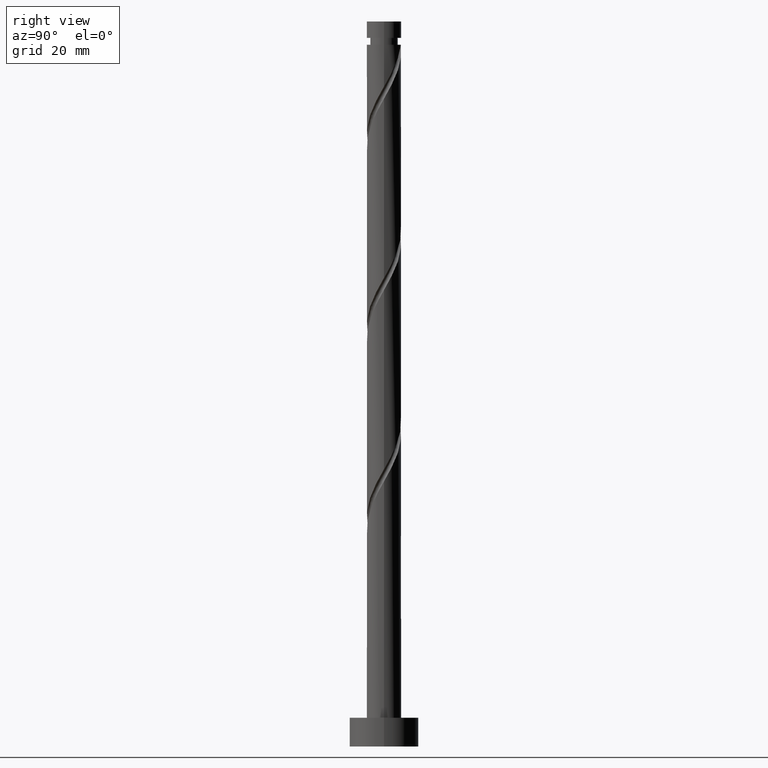
[diagram: clean part render]
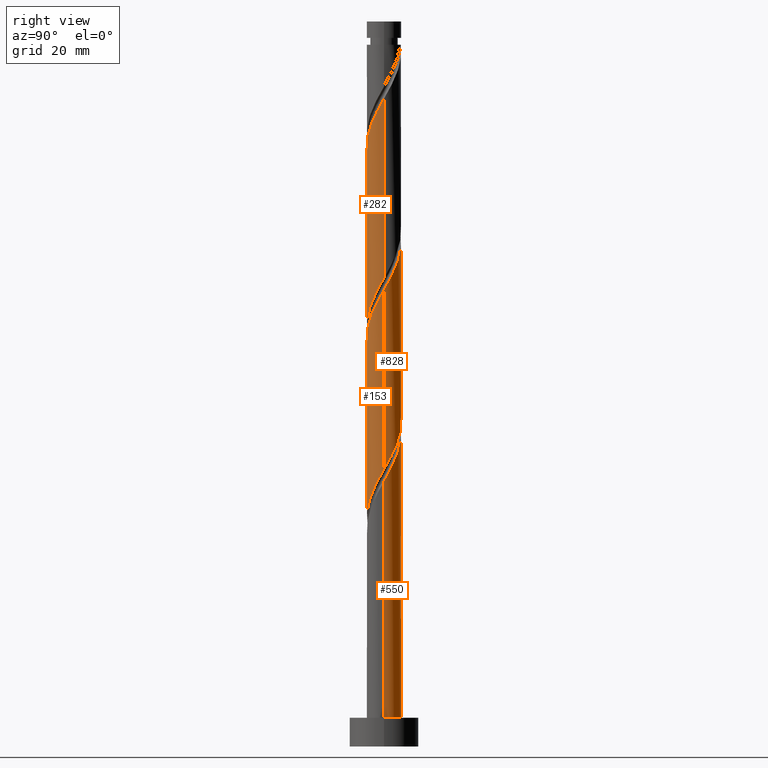
[diagram: same view with one multi-face feature highlighted, each face labeled with its STEP entity id]
A machine part, right view. The highlighted faces form ONE feature: a constant-radius fillet chain: 4 tangent blend faces with common blend radius 3 mm. The faces share edges in the B-rep.
Their STEP definitions:
[1] entity #282 (Cylinder):
#67 = CARTESIAN_POINT ( 'NONE',  ( -2.247618455994268682, -1.987010638188424938, 100.0223005663138309 ) ) ;
#70 = CARTESIAN_POINT ( 'NONE',  ( 3.000000000000000444, 3.673940397442060361E-16, 126.2999999999999972 ) ) ;
#81 = CARTESIAN_POINT ( 'NONE',  ( -0.9529893618115808929, -2.844610918258241306, 102.8000783440916166 ) ) ;
#91 = CARTESIAN_POINT ( 'NONE',  ( 0.5969924622639720679, -2.940000000000006164, 105.5778561218694023 ) ) ;
#119 = CARTESIAN_POINT ( 'NONE',  ( 1.337578430002084540, -2.685308910273302985, 106.9667450107582738 ) ) ;
#125 = CARTESIAN_POINT ( 'NONE',  ( 1.327489493864649539, -2.719147488601523222, 75.71674501075827379 ) ) ;
#134 = CARTESIAN_POINT ( 'NONE',  ( 2.940000000000000391, -0.5969924622639725120, 80.57785612186937385 ) ) ;
#140 = CARTESIAN_POINT ( 'NONE',  ( -2.282915221543595052, -1.986023542744032921, 68.77230056631381672 ) ) ;
#152 = VERTEX_POINT ( 'NONE', #730 ) ;
#207 = EDGE_CURVE ( 'NONE', #1441, #697, #371, .T. ) ;
#208 = CARTESIAN_POINT ( 'NONE',  ( -1.327489493864653314, -2.719147488601527662, 102.1056338996471453 ) ) ;
#215 = CARTESIAN_POINT ( 'NONE',  ( 0.2099341193570265496, -3.018595548697906139, 104.8834116774249310 ) ) ;
#218 = CYLINDRICAL_SURFACE ( 'NONE', #1223, 3.000000000000000444 ) ;
#245 = CARTESIAN_POINT ( 'NONE',  ( 2.509213369244494451, -1.691106054833253047, 78.49452278853604525 ) ) ;
#253 = CARTESIAN_POINT ( 'NONE',  ( 3.000000000000005329, 2.138391175437683903E-15, 112.8476227999926635 ) ) ;
#260 = CARTESIAN_POINT ( 'NONE',  ( 2.994334948306430100, -0.1842775552007419881, 112.5223005663138593 ) ) ;
#270 = CARTESIAN_POINT ( 'NONE',  ( 3.000000000000001332, -3.050572026498535773E-15, 81.64142277707944118 ) ) ;
#282 = ADVANCED_FACE ( 'NONE', ( #1026 ), #218, .T. ) ;
#336 = CARTESIAN_POINT ( 'NONE',  ( -2.509213369244499781, -1.691106054833252825, 99.32785612186935964 ) ) ;
#343 = CARTESIAN_POINT ( 'NONE',  ( -0.1842775552007404338, -2.994334948306430100, 104.1889672329805023 ) ) ;
#347 = DIRECTION ( 'NONE',  ( -1.000000000000000000, 0.000000000000000000, 0.000000000000000000 ) ) ;
#371 = LINE ( 'NONE', #1319, #430 ) ;
#377 = CARTESIAN_POINT ( 'NONE',  ( 2.501031355072561357, -1.656756518304346226, 109.7445227885360737 ) ) ;
#394 = CARTESIAN_POINT ( 'NONE',  ( 2.282915221543595941, -1.986023542744037584, 109.0500783440916166 ) ) ;
#430 = VECTOR ( 'NONE', #1084, 1000.000000000000000 ) ;
#461 = EDGE_LOOP ( 'NONE', ( #1214, #1558, #678, #1717 ) ) ;
#467 = DIRECTION ( 'NONE',  ( -0.000000000000000000, -0.000000000000000000, -1.000000000000000000 ) ) ;
#468 = EDGE_CURVE ( 'NONE', #1441, #1573, #890, .T. ) ;
#474 = LINE ( 'NONE', #70, #1139 ) ;
#581 = EDGE_CURVE ( 'NONE', #152, #697, #1711, .T. ) ;
#619 = CARTESIAN_POINT ( 'NONE',  ( -3.000000000000005773, -0.3015113445777629630, 96.71438250251522106 ) ) ;
#625 = CARTESIAN_POINT ( 'NONE',  ( 0.9840508051709158099, -2.861404451302103968, 106.2723005663138025 ) ) ;
#643 = CARTESIAN_POINT ( 'NONE',  ( 2.970074347914952728, -0.5784892297585085830, 111.8278561218693596 ) ) ;
#652 = CARTESIAN_POINT ( 'NONE',  ( 3.000000000000005773, -0.09222585497302364377, 112.6844591119645287 ) ) ;
#659 = CARTESIAN_POINT ( 'NONE',  ( 0.5784892297585039200, -2.970074347914949620, 74.32785612186938806 ) ) ;
#666 = CARTESIAN_POINT ( 'NONE',  ( -0.2099341193570287145, -3.018595548697903475, 72.93896723298048812 ) ) ;
#675 = CARTESIAN_POINT ( 'NONE',  ( -2.501031355072559137, -1.656756518304341563, 68.07785612186937385 ) ) ;
#678 = ORIENTED_EDGE ( 'NONE', *, *, #207, .T. ) ;
#697 = VERTEX_POINT ( 'NONE', #1126 ) ;
#730 = CARTESIAN_POINT ( 'NONE',  ( 3.000000000000001332, -3.050572026498535773E-15, 81.64142277707944118 ) ) ;
#776 = CARTESIAN_POINT ( 'NONE',  ( -3.000000000000005773, 1.644916288798218178E-16, 96.18095613332596372 ) ) ;
#782 = CARTESIAN_POINT ( 'NONE',  ( 1.691106054833251937, -2.509213369244499781, 107.6611894552027167 ) ) ;
#807 = CARTESIAN_POINT ( 'NONE',  ( -1.691106054833251493, -2.509213369244495784, 70.16118945520267403 ) ) ;
#823 = CARTESIAN_POINT ( 'NONE',  ( -3.000000000000000444, -0.09222585497302744628, 65.13791979844094726 ) ) ;
#890 =( BOUNDED_CURVE ( )  B_SPLINE_CURVE ( 2, ( #1713, #619, #1407, #1565, #1271, #336, #67, #1420, #1291, #208, #81, #1154, #343, #215, #91, #625, #119, #782, #1062, #394, #377, #940, #1478, #643, #260, #652, #253 ),
 .UNSPECIFIED., .F., .T. ) 
 B_SPLINE_CURVE_WITH_KNOTS ( ( 3, 2, 2, 2, 2, 2, 2, 2, 2, 2, 2, 2, 2, 3 ),
 ( 0.5545317669814462391, 0.5625000000000000000, 0.5729166666666667407, 0.5833333333333332593, 0.5937500000000000000, 0.6041666666666667407, 0.6145833333333332593, 0.6250000000000000000, 0.6354166666666667407, 0.6458333333333332593, 0.6562500000000000000, 0.6666666666666667407, 0.6770833333333332593, 0.6795317669814462391 ),
 .UNSPECIFIED. ) 
 CURVE ( )  GEOMETRIC_REPRESENTATION_ITEM ( )  RATIONAL_B_SPLINE_CURVE ( ( 0.9062941362546396151, 0.9031415850403439194, 0.9090909090909191637, 0.9013135103398377534, 0.9090909090909191637, 0.9013135103398377534, 0.9090909090909191637, 0.9013135103398377534, 0.9090909090909191637, 0.9013135103398377534, 0.9090909090909191637, 0.9013135103398377534, 0.9090909090909191637, 0.9013135103398377534, 0.9090909090909191637, 0.9013135103398377534, 0.9090909090909191637, 0.9013135103398377534, 0.9090909090909191637, 0.9013135103398377534, 0.9090909090909191637, 0.9013135103398377534, 0.9090909090909191637, 0.9013135103398377534, 0.9090909090909191637, 0.9072628343904129977, 0.9062941362546396151 ) ) 
 REPRESENTATION_ITEM ( '' )  );
#906 = CARTESIAN_POINT ( 'NONE',  ( -2.994334948306426103, -0.1842775552007384354, 65.30007834409160239 ) ) ;
#925 = CARTESIAN_POINT ( 'NONE',  ( 3.000000000000001776, -0.3015113445777652945, 81.10799640789015541 ) ) ;
#940 = CARTESIAN_POINT ( 'NONE',  ( 2.719147488601527218, -1.327489493864653314, 110.4389672329804881 ) ) ;
#1026 = FACE_OUTER_BOUND ( 'NONE', #461, .T. ) ;
#1052 = CARTESIAN_POINT ( 'NONE',  ( 2.685308910273296767, -1.337578430002085206, 79.18896723298050233 ) ) ;
#1062 = CARTESIAN_POINT ( 'NONE',  ( 1.987010638188424938, -2.247618455994268682, 108.3556338996471737 ) ) ;
#1067 = CARTESIAN_POINT ( 'NONE',  ( 0.9529893618115771181, -2.844610918258236421, 75.02230056631381672 ) ) ;
#1074 = CARTESIAN_POINT ( 'NONE',  ( 2.861404451302097751, -0.9840508051709180304, 79.88341167742493099 ) ) ;
#1083 = CARTESIAN_POINT ( 'NONE',  ( -2.719147488601523222, -1.327489493864649539, 67.38341167742491677 ) ) ;
#1084 = DIRECTION ( 'NONE',  ( -0.000000000000000000, -0.000000000000000000, -1.000000000000000000 ) ) ;
#1126 = CARTESIAN_POINT ( 'NONE',  ( -3.000000000000001332, -6.041328915222589030E-15, 64.97475611041279819 ) ) ;
#1139 = VECTOR ( 'NONE', #467, 1000.000000000000000 ) ;
#1154 = CARTESIAN_POINT ( 'NONE',  ( -0.5784892297585074727, -2.970074347914952728, 103.4945227885360310 ) ) ;
#1211 = CARTESIAN_POINT ( 'NONE',  ( -0.5969924622639721790, -2.940000000000000391, 72.24452278853607368 ) ) ;
#1214 = ORIENTED_EDGE ( 'NONE', *, *, #1230, .F. ) ;
#1219 = CARTESIAN_POINT ( 'NONE',  ( -2.844610918258236421, -0.9529893618115774512, 66.68896723298050233 ) ) ;
#1223 = AXIS2_PLACEMENT_3D ( 'NONE', #1426, #1698, #347 ) ;
#1230 = EDGE_CURVE ( 'NONE', #1573, #152, #474, .T. ) ;
#1271 = CARTESIAN_POINT ( 'NONE',  ( -2.685308910273302985, -1.337578430002084984, 98.63341167742494520 ) ) ;
#1291 = CARTESIAN_POINT ( 'NONE',  ( -1.656756518304345116, -2.501031355072562690, 101.4111894552027024 ) ) ;
#1314 = CARTESIAN_POINT ( 'NONE',  ( 1.986023542744032477, -2.282915221543594608, 77.10563389964714531 ) ) ;
#1319 = CARTESIAN_POINT ( 'NONE',  ( -3.000000000000000444, 0.000000000000000000, 126.2999999999999972 ) ) ;
#1331 = CARTESIAN_POINT ( 'NONE',  ( 1.656756518304340453, -2.501031355072559581, 76.41118945520270245 ) ) ;
#1350 = CARTESIAN_POINT ( 'NONE',  ( -1.987010638188424050, -2.247618455994263797, 69.46674501075823116 ) ) ;
#1374 = CARTESIAN_POINT ( 'NONE',  ( 3.000000000000005329, 2.138391175437683903E-15, 112.8476227999926635 ) ) ;
#1407 = CARTESIAN_POINT ( 'NONE',  ( -2.940000000000006164, -0.5969924622639720679, 97.24452278853605947 ) ) ;
#1420 = CARTESIAN_POINT ( 'NONE',  ( -1.986023542744037584, -2.282915221543595941, 100.7167450107582312 ) ) ;
#1426 = CARTESIAN_POINT ( 'NONE',  ( 0.000000000000000000, 0.000000000000000000, 126.2999999999999972 ) ) ;
#1441 = VERTEX_POINT ( 'NONE', #776 ) ;
#1469 = CARTESIAN_POINT ( 'NONE',  ( 2.247618455994263797, -1.987010638188424050, 77.80007834409160239 ) ) ;
#1478 = CARTESIAN_POINT ( 'NONE',  ( 2.844610918258241306, -0.9529893618115813370, 111.1334116774249452 ) ) ;
#1488 = CARTESIAN_POINT ( 'NONE',  ( -1.337578430002084540, -2.685308910273296767, 70.85563389964715952 ) ) ;
#1523 = CARTESIAN_POINT ( 'NONE',  ( -3.000000000000001332, -6.041328915222588241E-15, 64.97475611041279819 ) ) ;
#1558 = ORIENTED_EDGE ( 'NONE', *, *, #468, .F. ) ;
#1565 = CARTESIAN_POINT ( 'NONE',  ( -2.861404451302103968, -0.9840508051709158099, 97.93896723298050233 ) ) ;
#1573 = VERTEX_POINT ( 'NONE', #1374 ) ;
#1615 = CARTESIAN_POINT ( 'NONE',  ( -0.9840508051709164761, -2.861404451302098639, 71.55007834409158818 ) ) ;
#1623 = CARTESIAN_POINT ( 'NONE',  ( -2.970074347914949175, -0.5784892297585045862, 65.99452278853605947 ) ) ;
#1698 = DIRECTION ( 'NONE',  ( -0.000000000000000000, -0.000000000000000000, -1.000000000000000000 ) ) ;
#1711 =( BOUNDED_CURVE ( )  B_SPLINE_CURVE ( 2, ( #270, #925, #134, #1074, #1052, #245, #1469, #1314, #1331, #125, #1067, #659, #1741, #666, #1211, #1615, #1488, #807, #1350, #140, #675, #1083, #1219, #1623, #906, #823, #1523 ),
 .UNSPECIFIED., .F., .T. ) 
 B_SPLINE_CURVE_WITH_KNOTS ( ( 3, 2, 2, 2, 2, 2, 2, 2, 2, 2, 2, 2, 2, 3 ),
 ( 0.5545317669814463502, 0.5625000000000000000, 0.5729166666666666297, 0.5833333333333333703, 0.5937500000000000000, 0.6041666666666666297, 0.6145833333333333703, 0.6250000000000000000, 0.6354166666666666297, 0.6458333333333333703, 0.6562500000000000000, 0.6666666666666666297, 0.6770833333333333703, 0.6795317669814461281 ),
 .UNSPECIFIED. ) 
 CURVE ( )  GEOMETRIC_REPRESENTATION_ITEM ( )  RATIONAL_B_SPLINE_CURVE ( ( 0.9062941362546331758, 0.9031415850403377021, 0.9090909090909129464, 0.9013135103398315362, 0.9090909090909129464, 0.9013135103398315362, 0.9090909090909129464, 0.9013135103398315362, 0.9090909090909129464, 0.9013135103398315362, 0.9090909090909129464, 0.9013135103398315362, 0.9090909090909129464, 0.9013135103398315362, 0.9090909090909129464, 0.9013135103398315362, 0.9090909090909129464, 0.9013135103398315362, 0.9090909090909129464, 0.9013135103398315362, 0.9090909090909129464, 0.9013135103398315362, 0.9090909090909129464, 0.9013135103398315362, 0.9090909090909129464, 0.9072628343904068915, 0.9062941362546335089 ) ) 
 REPRESENTATION_ITEM ( '' )  );
#1713 = CARTESIAN_POINT ( 'NONE',  ( -3.000000000000006217, 1.644916288798217932E-16, 96.18095613332596372 ) ) ;
#1717 = ORIENTED_EDGE ( 'NONE', *, *, #581, .F. ) ;
#1741 = CARTESIAN_POINT ( 'NONE',  ( 0.1842775552007376860, -2.994334948306426103, 73.63341167742493099 ) ) ;
[2] entity #828 (Cylinder):
#1 = CARTESIAN_POINT ( 'NONE',  ( -3.000000000000005773, 0.09222585497302175639, 96.01779244529784307 ) ) ;
#11 = CARTESIAN_POINT ( 'NONE',  ( -2.970074347914952728, 0.5784892297585071397, 95.16118945520268824 ) ) ;
#45 = AXIS2_PLACEMENT_3D ( 'NONE', #602, #471, #1428 ) ;
#50 = CARTESIAN_POINT ( 'NONE',  ( -1.986023542744033366, 2.282915221543594164, 60.43896723298048812 ) ) ;
#80 = CYLINDRICAL_SURFACE ( 'NONE', #45, 3.000000000000000444 ) ;
#114 = CARTESIAN_POINT ( 'NONE',  ( 3.000000000000005329, -1.046764911053411698E-15, 79.51428946665932074 ) ) ;
#141 = CARTESIAN_POINT ( 'NONE',  ( 3.000000000000000888, 0.09222585497301824531, 48.47125313177425454 ) ) ;
#151 = CARTESIAN_POINT ( 'NONE',  ( -2.844610918258241306, 0.9529893618115803378, 94.46674501075827379 ) ) ;
#159 = EDGE_CURVE ( 'NONE', #697, #1056, #1320, .T. ) ;
#169 = CARTESIAN_POINT ( 'NONE',  ( -0.9529893618115777842, 2.844610918258236421, 58.35563389964715242 ) ) ;
#207 = EDGE_CURVE ( 'NONE', #1441, #697, #371, .T. ) ;
#248 = CARTESIAN_POINT ( 'NONE',  ( 1.327489493864653758, 2.719147488601527218, 85.43896723298044549 ) ) ;
#264 = CARTESIAN_POINT ( 'NONE',  ( 2.685308910273302985, 1.337578430002083874, 81.96674501075824537 ) ) ;
#287 = CARTESIAN_POINT ( 'NONE',  ( -2.282915221543596385, 1.986023542744037140, 92.38341167742488835 ) ) ;
#293 = CARTESIAN_POINT ( 'NONE',  ( 0.9840508051709182524, 2.861404451302097751, 54.88341167742493099 ) ) ;
#310 = CARTESIAN_POINT ( 'NONE',  ( -1.327489493864650649, 2.719147488601523222, 59.05007834409159528 ) ) ;
#369 = CARTESIAN_POINT ( 'NONE',  ( 3.000000000000003997, 0.3015113445777683476, 80.04771583584856387 ) ) ;
#371 = LINE ( 'NONE', #1319, #430 ) ;
#379 = CARTESIAN_POINT ( 'NONE',  ( 1.656756518304345116, 2.501031355072562246, 84.74452278853604525 ) ) ;
#380 = VERTEX_POINT ( 'NONE', #760 ) ;
#388 = CARTESIAN_POINT ( 'NONE',  ( 2.861404451302103968, 0.9840508051709155879, 81.27230056631380251 ) ) ;
#397 = CARTESIAN_POINT ( 'NONE',  ( -0.5969924622639714018, 2.940000000000006164, 88.91118945520275929 ) ) ;
#404 = CARTESIAN_POINT ( 'NONE',  ( -1.987010638188425382, 2.247618455994268682, 91.68896723298050233 ) ) ;
#426 = CARTESIAN_POINT ( 'NONE',  ( -0.5784892297585059184, 2.970074347914948731, 57.66118945520269534 ) ) ;
#430 = VECTOR ( 'NONE', #1084, 1000.000000000000000 ) ;
#471 = DIRECTION ( 'NONE',  ( -0.000000000000000000, -0.000000000000000000, -1.000000000000000000 ) ) ;
#480 = ORIENTED_EDGE ( 'NONE', *, *, #1524, .F. ) ;
#494 = CARTESIAN_POINT ( 'NONE',  ( 2.994334948306426103, 0.1842775552007375195, 48.63341167742493809 ) ) ;
#507 = CARTESIAN_POINT ( 'NONE',  ( 2.282915221543595052, 1.986023542744032477, 52.10563389964714531 ) ) ;
#573 = CARTESIAN_POINT ( 'NONE',  ( -2.509213369244495784, 1.691106054833251493, 61.82785612186936675 ) ) ;
#586 = CARTESIAN_POINT ( 'NONE',  ( 3.000000000000000444, 3.673940397442060361E-16, 126.2999999999999972 ) ) ;
#602 = CARTESIAN_POINT ( 'NONE',  ( 0.000000000000000000, 0.000000000000000000, 126.2999999999999972 ) ) ;
#627 = CARTESIAN_POINT ( 'NONE',  ( 0.9529893618115813370, 2.844610918258240417, 86.13341167742493099 ) ) ;
#646 = CARTESIAN_POINT ( 'NONE',  ( 2.247618455994269127, 1.987010638188424494, 83.35563389964717373 ) ) ;
#686 = CARTESIAN_POINT ( 'NONE',  ( 2.844610918258237309, 0.9529893618115758969, 50.02230056631381672 ) ) ;
#697 = VERTEX_POINT ( 'NONE', #1126 ) ;
#702 = CARTESIAN_POINT ( 'NONE',  ( -1.656756518304342007, 2.501031355072559137, 59.74452278853604525 ) ) ;
#742 = EDGE_CURVE ( 'NONE', #380, #1056, #1100, .T. ) ;
#760 = CARTESIAN_POINT ( 'NONE',  ( 3.000000000000005329, -1.046764911053411698E-15, 79.51428946665932074 ) ) ;
#765 = CARTESIAN_POINT ( 'NONE',  ( 2.501031355072559137, 1.656756518304341119, 51.41118945520270955 ) ) ;
#776 = CARTESIAN_POINT ( 'NONE',  ( -3.000000000000005773, 1.644916288798218178E-16, 96.18095613332596372 ) ) ;
#777 = CARTESIAN_POINT ( 'NONE',  ( 1.691106054833253269, 2.509213369244494451, 53.49452278853603815 ) ) ;
#795 = VECTOR ( 'NONE', #1092, 1000.000000000000000 ) ;
#819 = ORIENTED_EDGE ( 'NONE', *, *, #207, .F. ) ;
#826 = CARTESIAN_POINT ( 'NONE',  ( -2.719147488601528106, 1.327489493864652426, 93.77230056631381672 ) ) ;
#828 = ADVANCED_FACE ( 'NONE', ( #1284 ), #80, .T. ) ;
#851 = CARTESIAN_POINT ( 'NONE',  ( -2.247618455994264242, 1.987010638188423162, 61.13341167742493809 ) ) ;
#927 = CARTESIAN_POINT ( 'NONE',  ( 0.1842775552007421547, 2.994334948306430100, 87.52230056631385935 ) ) ;
#935 = CARTESIAN_POINT ( 'NONE',  ( -0.9840508051709164761, 2.861404451302103524, 89.60563389964714531 ) ) ;
#968 = CARTESIAN_POINT ( 'NONE',  ( 0.2099341193570279096, 3.018595548697902142, 56.27230056631381672 ) ) ;
#980 = CARTESIAN_POINT ( 'NONE',  ( -3.000000000000006217, 1.644916288798217932E-16, 96.18095613332596372 ) ) ;
#1033 = ORIENTED_EDGE ( 'NONE', *, *, #159, .F. ) ;
#1044 = CARTESIAN_POINT ( 'NONE',  ( 3.000000000000001332, -3.050572026498535773E-15, 48.30808944374610547 ) ) ;
#1056 = VERTEX_POINT ( 'NONE', #1044 ) ;
#1057 = CARTESIAN_POINT ( 'NONE',  ( 2.970074347914949620, 0.5784892297585034759, 49.32785612186937385 ) ) ;
#1069 = CARTESIAN_POINT ( 'NONE',  ( 2.940000000000006164, 0.5969924622639717349, 80.57785612186937385 ) ) ;
#1084 = DIRECTION ( 'NONE',  ( -0.000000000000000000, -0.000000000000000000, -1.000000000000000000 ) ) ;
#1092 = DIRECTION ( 'NONE',  ( -0.000000000000000000, -0.000000000000000000, -1.000000000000000000 ) ) ;
#1100 = LINE ( 'NONE', #586, #795 ) ;
#1102 = CARTESIAN_POINT ( 'NONE',  ( -2.501031355072562690, 1.656756518304345116, 93.07785612186937385 ) ) ;
#1126 = CARTESIAN_POINT ( 'NONE',  ( -3.000000000000001332, -6.041328915222589030E-15, 64.97475611041279819 ) ) ;
#1128 =( BOUNDED_CURVE ( )  B_SPLINE_CURVE ( 2, ( #114, #369, #1069, #388, #264, #1727, #646, #1597, #379, #248, #627, #1327, #927, #1610, #397, #935, #1293, #1704, #404, #287, #1102, #826, #151, #11, #1642, #1, #980 ),
 .UNSPECIFIED., .F., .T. ) 
 B_SPLINE_CURVE_WITH_KNOTS ( ( 3, 2, 2, 2, 2, 2, 2, 2, 2, 2, 2, 2, 2, 3 ),
 ( 0.4295317669814465167, 0.4375000000000000000, 0.4479166666666666297, 0.4583333333333333703, 0.4687500000000000000, 0.4791666666666666297, 0.4895833333333333703, 0.5000000000000000000, 0.5104166666666667407, 0.5208333333333332593, 0.5312500000000000000, 0.5416666666666667407, 0.5520833333333332593, 0.5545317669814462391 ),
 .UNSPECIFIED. ) 
 CURVE ( )  GEOMETRIC_REPRESENTATION_ITEM ( )  RATIONAL_B_SPLINE_CURVE ( ( 0.9062941362546393931, 0.9031415850403440304, 0.9090909090909191637, 0.9013135103398377534, 0.9090909090909191637, 0.9013135103398377534, 0.9090909090909191637, 0.9013135103398377534, 0.9090909090909191637, 0.9013135103398377534, 0.9090909090909191637, 0.9013135103398377534, 0.9090909090909191637, 0.9013135103398377534, 0.9090909090909191637, 0.9013135103398377534, 0.9090909090909191637, 0.9013135103398377534, 0.9090909090909191637, 0.9013135103398377534, 0.9090909090909191637, 0.9013135103398377534, 0.9090909090909191637, 0.9013135103398377534, 0.9090909090909191637, 0.9072628343904129977, 0.9062941362546396151 ) ) 
 REPRESENTATION_ITEM ( '' )  );
#1135 = CARTESIAN_POINT ( 'NONE',  ( -3.000000000000003109, 0.3015113445777567458, 64.44132974122351243 ) ) ;
#1246 = CARTESIAN_POINT ( 'NONE',  ( -0.1842775552007387407, 2.994334948306426103, 56.96674501075825248 ) ) ;
#1256 = CARTESIAN_POINT ( 'NONE',  ( -2.940000000000000391, 0.5969924622639720679, 63.91118945520271666 ) ) ;
#1265 = CARTESIAN_POINT ( 'NONE',  ( 1.337578430002085428, 2.685308910273296323, 54.18896723298048101 ) ) ;
#1284 = FACE_OUTER_BOUND ( 'NONE', #1714, .T. ) ;
#1293 = CARTESIAN_POINT ( 'NONE',  ( -1.337578430002084984, 2.685308910273302985, 90.30007834409161660 ) ) ;
#1319 = CARTESIAN_POINT ( 'NONE',  ( -3.000000000000000444, 0.000000000000000000, 126.2999999999999972 ) ) ;
#1320 =( BOUNDED_CURVE ( )  B_SPLINE_CURVE ( 2, ( #1397, #1135, #1256, #1639, #1381, #573, #851, #50, #702, #310, #169, #426, #1246, #968, #1514, #293, #1265, #777, #1442, #507, #765, #1498, #686, #1057, #494, #141, #1361 ),
 .UNSPECIFIED., .F., .F. ) 
 B_SPLINE_CURVE_WITH_KNOTS ( ( 3, 2, 2, 2, 2, 2, 2, 2, 2, 2, 2, 2, 2, 3 ),
 ( 0.6795317669814461281, 0.6875000000000000000, 0.6979166666666666297, 0.7083333333333333703, 0.7187500000000000000, 0.7291666666666666297, 0.7395833333333333703, 0.7500000000000000000, 0.7604166666666666297, 0.7708333333333333703, 0.7812500000000000000, 0.7916666666666666297, 0.8020833333333333703, 0.8045317669814463502 ),
 .UNSPECIFIED. ) 
 CURVE ( )  GEOMETRIC_REPRESENTATION_ITEM ( )  RATIONAL_B_SPLINE_CURVE ( ( 0.9062941362546335089, 0.9031415850403374801, 0.9090909090909129464, 0.9013135103398315362, 0.9090909090909129464, 0.9013135103398315362, 0.9090909090909129464, 0.9013135103398315362, 0.9090909090909129464, 0.9013135103398315362, 0.9090909090909129464, 0.9013135103398315362, 0.9090909090909129464, 0.9013135103398315362, 0.9090909090909129464, 0.9013135103398315362, 0.9090909090909129464, 0.9013135103398315362, 0.9090909090909129464, 0.9013135103398315362, 0.9090909090909129464, 0.9013135103398315362, 0.9090909090909129464, 0.9013135103398315362, 0.9090909090909129464, 0.9072628343904066694, 0.9062941362546331758 ) ) 
 REPRESENTATION_ITEM ( '' )  );
#1327 = CARTESIAN_POINT ( 'NONE',  ( 0.5784892297585089160, 2.970074347914952728, 86.82785612186933122 ) ) ;
#1361 = CARTESIAN_POINT ( 'NONE',  ( 3.000000000000001332, -3.050572026498535773E-15, 48.30808944374610547 ) ) ;
#1381 = CARTESIAN_POINT ( 'NONE',  ( -2.685308910273296767, 1.337578430002084540, 62.52230056631380961 ) ) ;
#1397 = CARTESIAN_POINT ( 'NONE',  ( -3.000000000000001332, -6.041328915222588241E-15, 64.97475611041279819 ) ) ;
#1428 = DIRECTION ( 'NONE',  ( -1.000000000000000000, 0.000000000000000000, 0.000000000000000000 ) ) ;
#1441 = VERTEX_POINT ( 'NONE', #776 ) ;
#1442 = CARTESIAN_POINT ( 'NONE',  ( 1.987010638188424050, 2.247618455994263797, 52.80007834409160239 ) ) ;
#1498 = CARTESIAN_POINT ( 'NONE',  ( 2.719147488601524998, 1.327489493864647763, 50.71674501075825248 ) ) ;
#1514 = CARTESIAN_POINT ( 'NONE',  ( 0.5969924622639726230, 2.940000000000000391, 55.57785612186938806 ) ) ;
#1524 = EDGE_CURVE ( 'NONE', #380, #1441, #1128, .T. ) ;
#1597 = CARTESIAN_POINT ( 'NONE',  ( 1.986023542744038917, 2.282915221543595496, 84.05007834409157397 ) ) ;
#1598 = ORIENTED_EDGE ( 'NONE', *, *, #742, .T. ) ;
#1610 = CARTESIAN_POINT ( 'NONE',  ( -0.2099341193570245512, 3.018595548697906139, 88.21674501075824537 ) ) ;
#1639 = CARTESIAN_POINT ( 'NONE',  ( -2.861404451302099083, 0.9840508051709158099, 63.21674501075824537 ) ) ;
#1642 = CARTESIAN_POINT ( 'NONE',  ( -2.994334948306430100, 0.1842775552007402395, 95.85563389964717373 ) ) ;
#1704 = CARTESIAN_POINT ( 'NONE',  ( -1.691106054833253269, 2.509213369244499336, 90.99452278853598841 ) ) ;
#1714 = EDGE_LOOP ( 'NONE', ( #480, #1598, #1033, #819 ) ) ;
#1727 = CARTESIAN_POINT ( 'NONE',  ( 2.509213369244499781, 1.691106054833251715, 82.66118945520268824 ) ) ;
[3] entity #153 (Cylinder):
#21 = CARTESIAN_POINT ( 'NONE',  ( 2.282915221543595941, -1.986023542744037584, 75.71674501075825958 ) ) ;
#36 = CYLINDRICAL_SURFACE ( 'NONE', #605, 3.000000000000000444 ) ;
#63 = CARTESIAN_POINT ( 'NONE',  ( 0.5784892297585039200, -2.970074347914949620, 40.99452278853603104 ) ) ;
#66 = CARTESIAN_POINT ( 'NONE',  ( 2.861404451302097751, -0.9840508051709180304, 46.55007834409157397 ) ) ;
#143 = CARTESIAN_POINT ( 'NONE',  ( 0.5969924622639720679, -2.940000000000006164, 72.24452278853604525 ) ) ;
#153 = ADVANCED_FACE ( 'NONE', ( #713 ), #36, .T. ) ;
#161 = CARTESIAN_POINT ( 'NONE',  ( 3.000000000000005329, -0.09222585497301638569, 79.35112577863118588 ) ) ;
#173 = CARTESIAN_POINT ( 'NONE',  ( -0.9529893618115808929, -2.844610918258241306, 69.46674501075825958 ) ) ;
#197 = CARTESIAN_POINT ( 'NONE',  ( -2.844610918258236421, -0.9529893618115774512, 33.35563389964714531 ) ) ;
#272 = CARTESIAN_POINT ( 'NONE',  ( -2.940000000000006164, -0.5969924622639720679, 63.91118945520272376 ) ) ;
#279 = CARTESIAN_POINT ( 'NONE',  ( 1.337578430002084540, -2.685308910273302985, 73.63341167742491677 ) ) ;
#296 = CARTESIAN_POINT ( 'NONE',  ( 2.719147488601527218, -1.327489493864653314, 77.10563389964714531 ) ) ;
#322 = DIRECTION ( 'NONE',  ( -1.000000000000000000, 0.000000000000000000, 0.000000000000000000 ) ) ;
#323 = CARTESIAN_POINT ( 'NONE',  ( 2.940000000000000391, -0.5969924622639725120, 47.24452278853603815 ) ) ;
#360 = CARTESIAN_POINT ( 'NONE',  ( 2.509213369244494451, -1.691106054833253047, 45.16118945520270245 ) ) ;
#368 = CARTESIAN_POINT ( 'NONE',  ( -1.691106054833251493, -2.509213369244495784, 36.82785612186936675 ) ) ;
#380 = VERTEX_POINT ( 'NONE', #760 ) ;
#411 = CARTESIAN_POINT ( 'NONE',  ( -0.1842775552007404338, -2.994334948306430100, 70.85563389964714531 ) ) ;
#419 = CARTESIAN_POINT ( 'NONE',  ( -3.000000000000005329, -0.3015113445777639067, 63.38104916918189957 ) ) ;
#431 = CARTESIAN_POINT ( 'NONE',  ( -2.509213369244499781, -1.691106054833252825, 65.99452278853604525 ) ) ;
#440 = CARTESIAN_POINT ( 'NONE',  ( -2.861404451302103968, -0.9840508051709158099, 64.60563389964715952 ) ) ;
#460 = CARTESIAN_POINT ( 'NONE',  ( 0.1842775552007376860, -2.994334948306426103, 40.30007834409159528 ) ) ;
#498 = CARTESIAN_POINT ( 'NONE',  ( 1.327489493864649539, -2.719147488601523222, 42.38341167742492388 ) ) ;
#542 = CARTESIAN_POINT ( 'NONE',  ( 0.2099341193570265496, -3.018595548697906139, 71.55007834409157397 ) ) ;
#543 = VERTEX_POINT ( 'NONE', #1448 ) ;
#554 = CARTESIAN_POINT ( 'NONE',  ( -1.656756518304345116, -2.501031355072562690, 68.07785612186938806 ) ) ;
#577 = CARTESIAN_POINT ( 'NONE',  ( -0.5784892297585074727, -2.970074347914952728, 70.16118945520270245 ) ) ;
#578 = VECTOR ( 'NONE', #1559, 1000.000000000000000 ) ;
#586 = CARTESIAN_POINT ( 'NONE',  ( 3.000000000000000444, 3.673940397442060361E-16, 126.2999999999999972 ) ) ;
#605 = AXIS2_PLACEMENT_3D ( 'NONE', #1651, #993, #322 ) ;
#610 = EDGE_LOOP ( 'NONE', ( #1568, #1294, #1281, #871 ) ) ;
#630 = CARTESIAN_POINT ( 'NONE',  ( 3.000000000000001332, -3.050572026498535773E-15, 48.30808944374610547 ) ) ;
#677 = CARTESIAN_POINT ( 'NONE',  ( 1.691106054833251937, -2.509213369244499781, 74.32785612186937385 ) ) ;
#688 = CARTESIAN_POINT ( 'NONE',  ( -2.247618455994268682, -1.987010638188424938, 66.68896723298050233 ) ) ;
#689 = VERTEX_POINT ( 'NONE', #1652 ) ;
#705 = CARTESIAN_POINT ( 'NONE',  ( -1.986023542744037584, -2.282915221543595941, 67.38341167742493099 ) ) ;
#713 = FACE_OUTER_BOUND ( 'NONE', #610, .T. ) ;
#742 = EDGE_CURVE ( 'NONE', #380, #1056, #1100, .T. ) ;
#760 = CARTESIAN_POINT ( 'NONE',  ( 3.000000000000005329, -1.046764911053411698E-15, 79.51428946665932074 ) ) ;
#795 = VECTOR ( 'NONE', #1092, 1000.000000000000000 ) ;
#809 = CARTESIAN_POINT ( 'NONE',  ( -2.685308910273302985, -1.337578430002084984, 65.30007834409161660 ) ) ;
#818 = CARTESIAN_POINT ( 'NONE',  ( 3.000000000000005329, -1.046764911053411698E-15, 79.51428946665932074 ) ) ;
#836 = CARTESIAN_POINT ( 'NONE',  ( 2.994334948306430100, -0.1842775552007419881, 79.18896723298048812 ) ) ;
#845 = CARTESIAN_POINT ( 'NONE',  ( -2.994334948306426103, -0.1842775552007384354, 31.96674501075825958 ) ) ;
#871 = ORIENTED_EDGE ( 'NONE', *, *, #959, .F. ) ;
#874 = CARTESIAN_POINT ( 'NONE',  ( -2.719147488601523222, -1.327489493864649539, 34.05007834409159528 ) ) ;
#944 = CARTESIAN_POINT ( 'NONE',  ( -3.000000000000005329, -8.224581443991092616E-16, 62.84762279999263512 ) ) ;
#952 = CARTESIAN_POINT ( 'NONE',  ( 1.987010638188424938, -2.247618455994268682, 75.02230056631381672 ) ) ;
#959 = EDGE_CURVE ( 'NONE', #1056, #689, #1663, .T. ) ;
#993 = DIRECTION ( 'NONE',  ( -0.000000000000000000, -0.000000000000000000, -1.000000000000000000 ) ) ;
#1001 = CARTESIAN_POINT ( 'NONE',  ( -2.501031355072559137, -1.656756518304341563, 34.74452278853602394 ) ) ;
#1037 = CARTESIAN_POINT ( 'NONE',  ( 1.986023542744032477, -2.282915221543594608, 43.77230056631382382 ) ) ;
#1044 = CARTESIAN_POINT ( 'NONE',  ( 3.000000000000001332, -3.050572026498535773E-15, 48.30808944374610547 ) ) ;
#1056 = VERTEX_POINT ( 'NONE', #1044 ) ;
#1092 = DIRECTION ( 'NONE',  ( -0.000000000000000000, -0.000000000000000000, -1.000000000000000000 ) ) ;
#1100 = LINE ( 'NONE', #586, #795 ) ;
#1143 = CARTESIAN_POINT ( 'NONE',  ( -2.282915221543595052, -1.986023542744032921, 35.43896723298047391 ) ) ;
#1169 = CARTESIAN_POINT ( 'NONE',  ( 2.247618455994263797, -1.987010638188424050, 44.46674501075827379 ) ) ;
#1176 = CARTESIAN_POINT ( 'NONE',  ( 0.9529893618115771181, -2.844610918258236421, 41.68896723298049523 ) ) ;
#1233 = CARTESIAN_POINT ( 'NONE',  ( 2.501031355072561357, -1.656756518304346226, 76.41118945520271666 ) ) ;
#1281 = ORIENTED_EDGE ( 'NONE', *, *, #1332, .T. ) ;
#1294 = ORIENTED_EDGE ( 'NONE', *, *, #1608, .F. ) ;
#1308 =( BOUNDED_CURVE ( )  B_SPLINE_CURVE ( 2, ( #944, #419, #272, #440, #809, #431, #688, #705, #554, #1352, #173, #577, #411, #542, #143, #1617, #279, #677, #952, #21, #1233, #296, #1500, #1517, #836, #161, #818 ),
 .UNSPECIFIED., .F., .T. ) 
 B_SPLINE_CURVE_WITH_KNOTS ( ( 3, 2, 2, 2, 2, 2, 2, 2, 2, 2, 2, 2, 2, 3 ),
 ( 0.3045317669814463502, 0.3125000000000000000, 0.3229166666666666297, 0.3333333333333333703, 0.3437500000000000000, 0.3541666666666666297, 0.3645833333333333703, 0.3750000000000000000, 0.3854166666666666297, 0.3958333333333333703, 0.4062500000000000000, 0.4166666666666666297, 0.4270833333333333703, 0.4295317669814465167 ),
 .UNSPECIFIED. ) 
 CURVE ( )  GEOMETRIC_REPRESENTATION_ITEM ( )  RATIONAL_B_SPLINE_CURVE ( ( 0.9062941362546395041, 0.9031415850403439194, 0.9090909090909191637, 0.9013135103398377534, 0.9090909090909191637, 0.9013135103398377534, 0.9090909090909191637, 0.9013135103398377534, 0.9090909090909191637, 0.9013135103398377534, 0.9090909090909191637, 0.9013135103398377534, 0.9090909090909191637, 0.9013135103398377534, 0.9090909090909191637, 0.9013135103398377534, 0.9090909090909191637, 0.9013135103398377534, 0.9090909090909191637, 0.9013135103398377534, 0.9090909090909191637, 0.9013135103398377534, 0.9090909090909191637, 0.9013135103398377534, 0.9090909090909191637, 0.9072628343904127757, 0.9062941362546393931 ) ) 
 REPRESENTATION_ITEM ( '' )  );
#1332 = EDGE_CURVE ( 'NONE', #543, #689, #1433, .T. ) ;
#1352 = CARTESIAN_POINT ( 'NONE',  ( -1.327489493864653314, -2.719147488601527662, 68.77230056631381672 ) ) ;
#1417 = CARTESIAN_POINT ( 'NONE',  ( -0.5969924622639721790, -2.940000000000000391, 38.91118945520269534 ) ) ;
#1433 = LINE ( 'NONE', #1691, #578 ) ;
#1448 = CARTESIAN_POINT ( 'NONE',  ( -3.000000000000005329, -8.224581443991092616E-16, 62.84762279999263512 ) ) ;
#1500 = CARTESIAN_POINT ( 'NONE',  ( 2.844610918258241306, -0.9529893618115813370, 77.80007834409158818 ) ) ;
#1517 = CARTESIAN_POINT ( 'NONE',  ( 2.970074347914952728, -0.5784892297585085830, 78.49452278853603104 ) ) ;
#1529 = CARTESIAN_POINT ( 'NONE',  ( -0.2099341193570287145, -3.018595548697903475, 39.60563389964715952 ) ) ;
#1540 = CARTESIAN_POINT ( 'NONE',  ( -0.9840508051709164761, -2.861404451302098639, 38.21674501075825958 ) ) ;
#1554 = CARTESIAN_POINT ( 'NONE',  ( -3.000000000000001332, 2.347744157648382966E-15, 31.64142277707943052 ) ) ;
#1559 = DIRECTION ( 'NONE',  ( -0.000000000000000000, -0.000000000000000000, -1.000000000000000000 ) ) ;
#1568 = ORIENTED_EDGE ( 'NONE', *, *, #742, .F. ) ;
#1579 = CARTESIAN_POINT ( 'NONE',  ( 2.685308910273296767, -1.337578430002085206, 45.85563389964715242 ) ) ;
#1586 = CARTESIAN_POINT ( 'NONE',  ( -1.337578430002084540, -2.685308910273296767, 37.52230056631380961 ) ) ;
#1608 = EDGE_CURVE ( 'NONE', #543, #380, #1308, .T. ) ;
#1617 = CARTESIAN_POINT ( 'NONE',  ( 0.9840508051709158099, -2.861404451302103968, 72.93896723298047391 ) ) ;
#1651 = CARTESIAN_POINT ( 'NONE',  ( 0.000000000000000000, 0.000000000000000000, 126.2999999999999972 ) ) ;
#1652 = CARTESIAN_POINT ( 'NONE',  ( -3.000000000000001332, 2.347744157648382966E-15, 31.64142277707943052 ) ) ;
#1656 = CARTESIAN_POINT ( 'NONE',  ( -1.987010638188424050, -2.247618455994263797, 36.13341167742493809 ) ) ;
#1663 =( BOUNDED_CURVE ( )  B_SPLINE_CURVE ( 2, ( #630, #1669, #323, #66, #1579, #360, #1169, #1037, #1708, #498, #1176, #63, #460, #1529, #1417, #1540, #1586, #368, #1656, #1143, #1001, #874, #197, #1675, #845, #1716, #1554 ),
 .UNSPECIFIED., .F., .T. ) 
 B_SPLINE_CURVE_WITH_KNOTS ( ( 3, 2, 2, 2, 2, 2, 2, 2, 2, 2, 2, 2, 2, 3 ),
 ( 0.8045317669814463502, 0.8125000000000000000, 0.8229166666666666297, 0.8333333333333333703, 0.8437500000000000000, 0.8541666666666666297, 0.8645833333333333703, 0.8750000000000000000, 0.8854166666666666297, 0.8958333333333333703, 0.9062500000000000000, 0.9166666666666666297, 0.9270833333333333703, 0.9295317669814463502 ),
 .UNSPECIFIED. ) 
 CURVE ( )  GEOMETRIC_REPRESENTATION_ITEM ( )  RATIONAL_B_SPLINE_CURVE ( ( 0.9062941362546331758, 0.9031415850403377021, 0.9090909090909129464, 0.9013135103398315362, 0.9090909090909129464, 0.9013135103398315362, 0.9090909090909129464, 0.9013135103398315362, 0.9090909090909129464, 0.9013135103398315362, 0.9090909090909129464, 0.9013135103398315362, 0.9090909090909129464, 0.9013135103398315362, 0.9090909090909129464, 0.9013135103398315362, 0.9090909090909129464, 0.9013135103398315362, 0.9090909090909129464, 0.9013135103398315362, 0.9090909090909129464, 0.9013135103398315362, 0.9090909090909129464, 0.9013135103398315362, 0.9090909090909129464, 0.9072628343904066694, 0.9062941362546331758 ) ) 
 REPRESENTATION_ITEM ( '' )  );
#1669 = CARTESIAN_POINT ( 'NONE',  ( 3.000000000000001776, -0.3015113445777652945, 47.77466307455682681 ) ) ;
#1675 = CARTESIAN_POINT ( 'NONE',  ( -2.970074347914949175, -0.5784892297585045862, 32.66118945520270245 ) ) ;
#1691 = CARTESIAN_POINT ( 'NONE',  ( -3.000000000000000444, 0.000000000000000000, 126.2999999999999972 ) ) ;
#1708 = CARTESIAN_POINT ( 'NONE',  ( 1.656756518304340453, -2.501031355072559581, 43.07785612186938096 ) ) ;
#1716 = CARTESIAN_POINT ( 'NONE',  ( -3.000000000000000888, -0.09222585497301906410, 31.80458646510757958 ) ) ;
[4] entity #550 (Cylinder):
#10 = AXIS2_PLACEMENT_3D ( 'NONE', #112, #1202, #236 ) ;
#30 = EDGE_CURVE ( 'NONE', #689, #1046, #41, .T. ) ;
#39 = CARTESIAN_POINT ( 'NONE',  ( -3.000000000000000444, 0.000000000000000000, 126.2999999999999972 ) ) ;
#41 =( BOUNDED_CURVE ( )  B_SPLINE_CURVE ( 2, ( #485, #348, #496, #1059, #767, #1729, #1309, #107, #914, #649, #1191, #519, #382, #922, #691 ),
 .UNSPECIFIED., .F., .T. ) 
 B_SPLINE_CURVE_WITH_KNOTS ( ( 3, 2, 2, 2, 2, 2, 2, 3 ),
 ( 0.9295317669814463502, 0.9375000000000000000, 0.9479166666666666297, 0.9583333333333333703, 0.9687500000000000000, 0.9791666666666666297, 0.9895833333333333703, 1.000000000000000000 ),
 .UNSPECIFIED. ) 
 CURVE ( )  GEOMETRIC_REPRESENTATION_ITEM ( )  RATIONAL_B_SPLINE_CURVE ( ( 0.9062941362546331758, 0.9031415850403377021, 0.9090909090909129464, 0.9013135103398315362, 0.9090909090909129464, 0.9013135103398315362, 0.9090909090909129464, 0.9013135103398315362, 0.9090909090909129464, 0.9013135103398315362, 0.9090909090909129464, 0.9013135103398315362, 0.9090909090909129464, 0.9013135103398315362, 0.9090909090909129464 ) ) 
 REPRESENTATION_ITEM ( '' )  );
#42 = VECTOR ( 'NONE', #438, 1000.000000000000000 ) ;
#62 = CARTESIAN_POINT ( 'NONE',  ( -2.970074347914952728, 0.5784892297585071397, 28.49452278853603815 ) ) ;
#75 = CARTESIAN_POINT ( 'NONE',  ( -0.5969924622639714018, 2.940000000000006164, 55.57785612186938096 ) ) ;
#77 = CARTESIAN_POINT ( 'NONE',  ( -2.719147488601528106, 1.327489493864652426, 27.10563389964713821 ) ) ;
#89 = CARTESIAN_POINT ( 'NONE',  ( -2.994334948306430100, 0.1842775552007402395, 62.52230056631381672 ) ) ;
#94 = VERTEX_POINT ( 'NONE', #803 ) ;
#97 = CARTESIAN_POINT ( 'NONE',  ( 1.986023542744038917, 2.282915221543595496, 50.71674501075824537 ) ) ;
#107 = CARTESIAN_POINT ( 'NONE',  ( -1.986023542744033366, 2.282915221543594164, 27.10563389964714531 ) ) ;
#112 = CARTESIAN_POINT ( 'NONE',  ( 0.000000000000000000, 0.000000000000000000, 126.2999999999999972 ) ) ;
#136 = DIRECTION ( 'NONE',  ( -0.000000000000000000, -0.000000000000000000, -1.000000000000000000 ) ) ;
#150 = CIRCLE ( 'NONE', #1137, 3.000000000000000444 ) ;
#163 =( BOUNDED_CURVE ( )  B_SPLINE_CURVE ( 2, ( #1665, #331, #1268, #1282, #1156, #1696, #607, #77, #748, #62, #597, #1547, #326 ),
 .UNSPECIFIED., .F., .T. ) 
 B_SPLINE_CURVE_WITH_KNOTS ( ( 3, 2, 2, 2, 2, 2, 3 ),
 ( 0.000000000000000000, 0.01041666666666662966, 0.02083333333333337034, 0.03125000000000000000, 0.04166666666666662966, 0.05208333333333337034, 0.05453176698144646117 ),
 .UNSPECIFIED. ) 
 CURVE ( )  GEOMETRIC_REPRESENTATION_ITEM ( )  RATIONAL_B_SPLINE_CURVE ( ( 0.9090909090909191637, 0.9013135103398377534, 0.9090909090909191637, 0.9013135103398377534, 0.9090909090909191637, 0.9013135103398377534, 0.9090909090909191637, 0.9013135103398377534, 0.9090909090909191637, 0.9013135103398377534, 0.9090909090909191637, 0.9072628343904127757, 0.9062941362546392821 ) ) 
 REPRESENTATION_ITEM ( '' )  );
#170 = CARTESIAN_POINT ( 'NONE',  ( -0.5969924622639714018, 2.940000000000005720, 22.24452278853603104 ) ) ;
#184 = CARTESIAN_POINT ( 'NONE',  ( 0.5969924622639724010, 2.939999999999999947, 22.24452278853603104 ) ) ;
#193 = CARTESIAN_POINT ( 'NONE',  ( 0.1842775552007421547, 2.994334948306430100, 54.18896723298048812 ) ) ;
#236 = DIRECTION ( 'NONE',  ( -1.000000000000000000, 0.000000000000000000, 0.000000000000000000 ) ) ;
#319 = CARTESIAN_POINT ( 'NONE',  ( 3.000000000000000444, 3.673940397442060361E-16, 5.000000000000000000 ) ) ;
#326 = CARTESIAN_POINT ( 'NONE',  ( -3.000000000000005773, -9.211531217270026728E-15, 29.51428946665932074 ) ) ;
#331 = CARTESIAN_POINT ( 'NONE',  ( -0.9840508051709164761, 2.861404451302103524, 22.93896723298047036 ) ) ;
#348 = CARTESIAN_POINT ( 'NONE',  ( -3.000000000000001776, 0.3015113445777650170, 31.10799640789016252 ) ) ;
#366 = ORIENTED_EDGE ( 'NONE', *, *, #1261, .F. ) ;
#382 = CARTESIAN_POINT ( 'NONE',  ( -0.1842775552007387407, 2.994334948306426103, 23.63341167742492033 ) ) ;
#402 = CARTESIAN_POINT ( 'NONE',  ( -3.000000000000005773, -9.211531217270026728E-15, 29.51428946665932074 ) ) ;
#405 = ORIENTED_EDGE ( 'NONE', *, *, #428, .T. ) ;
#428 = EDGE_CURVE ( 'NONE', #670, #1046, #150, .T. ) ;
#438 = DIRECTION ( 'NONE',  ( -0.000000000000000000, -0.000000000000000000, -1.000000000000000000 ) ) ;
#453 = CARTESIAN_POINT ( 'NONE',  ( 3.000000000000005329, 0.3015113445777611312, 46.71438250251523527 ) ) ;
#485 = CARTESIAN_POINT ( 'NONE',  ( -3.000000000000001332, 2.347744157648382966E-15, 31.64142277707943052 ) ) ;
#496 = CARTESIAN_POINT ( 'NONE',  ( -2.940000000000000391, 0.5969924622639720679, 30.57785612186937030 ) ) ;
#502 = VERTEX_POINT ( 'NONE', #402 ) ;
#519 = CARTESIAN_POINT ( 'NONE',  ( -0.5784892297585059184, 2.970074347914948731, 24.32785612186937385 ) ) ;
#533 = FACE_OUTER_BOUND ( 'NONE', #1576, .T. ) ;
#543 = VERTEX_POINT ( 'NONE', #1448 ) ;
#549 = CYLINDRICAL_SURFACE ( 'NONE', #10, 3.000000000000000444 ) ;
#550 = ADVANCED_FACE ( 'NONE', ( #533 ), #549, .T. ) ;
#576 = AXIS2_PLACEMENT_3D ( 'NONE', #1398, #714, #1247 ) ;
#578 = VECTOR ( 'NONE', #1559, 1000.000000000000000 ) ;
#597 = CARTESIAN_POINT ( 'NONE',  ( -2.994334948306430100, 0.1842775552007402395, 29.18896723298047746 ) ) ;
#607 = CARTESIAN_POINT ( 'NONE',  ( -2.501031355072562690, 1.656756518304345116, 26.41118945520270245 ) ) ;
#612 = CARTESIAN_POINT ( 'NONE',  ( -1.987010638188425382, 2.247618455994268682, 58.35563389964715952 ) ) ;
#649 = CARTESIAN_POINT ( 'NONE',  ( -1.327489493864650649, 2.719147488601523222, 25.71674501075825603 ) ) ;
#667 = EDGE_CURVE ( 'NONE', #1103, #94, #1107, .T. ) ;
#670 = VERTEX_POINT ( 'NONE', #170 ) ;
#684 = CARTESIAN_POINT ( 'NONE',  ( 3.000000000000000444, 3.673940397442060361E-16, 126.2999999999999972 ) ) ;
#689 = VERTEX_POINT ( 'NONE', #1652 ) ;
#691 = CARTESIAN_POINT ( 'NONE',  ( 0.5969924622639725120, 2.939999999999999947, 22.24452278853603104 ) ) ;
#699 = EDGE_CURVE ( 'NONE', #747, #1103, #1390, .T. ) ;
#714 = DIRECTION ( 'NONE',  ( 0.000000000000000000, 0.000000000000000000, 1.000000000000000000 ) ) ;
#731 = CARTESIAN_POINT ( 'NONE',  ( -0.2099341193570245512, 3.018595548697906139, 54.88341167742494520 ) ) ;
#737 = CARTESIAN_POINT ( 'NONE',  ( 1.327489493864653758, 2.719147488601527218, 52.10563389964713821 ) ) ;
#743 = VECTOR ( 'NONE', #136, 1000.000000000000000 ) ;
#745 = CARTESIAN_POINT ( 'NONE',  ( -0.9840508051709164761, 2.861404451302103524, 56.27230056631380961 ) ) ;
#747 = VERTEX_POINT ( 'NONE', #1533 ) ;
#748 = CARTESIAN_POINT ( 'NONE',  ( -2.844610918258241306, 0.9529893618115803378, 27.80007834409159884 ) ) ;
#751 = CARTESIAN_POINT ( 'NONE',  ( 2.509213369244499781, 1.691106054833251715, 49.32785612186936675 ) ) ;
#756 = CARTESIAN_POINT ( 'NONE',  ( 1.656756518304345116, 2.501031355072562246, 51.41118945520270955 ) ) ;
#767 = CARTESIAN_POINT ( 'NONE',  ( -2.685308910273296767, 1.337578430002084540, 29.18896723298048101 ) ) ;
#803 = CARTESIAN_POINT ( 'NONE',  ( -3.000000000000000444, 0.000000000000000000, 5.000000000000000000 ) ) ;
#858 = EDGE_CURVE ( 'NONE', #747, #543, #1528, .T. ) ;
#861 = CARTESIAN_POINT ( 'NONE',  ( 2.247618455994269127, 1.987010638188424494, 50.02230056631383093 ) ) ;
#869 = CARTESIAN_POINT ( 'NONE',  ( 2.685308910273302985, 1.337578430002083874, 48.63341167742494520 ) ) ;
#879 = ORIENTED_EDGE ( 'NONE', *, *, #30, .F. ) ;
#894 = CARTESIAN_POINT ( 'NONE',  ( 3.000000000000005329, -1.046764911053411698E-15, 46.18095613332597793 ) ) ;
#914 = CARTESIAN_POINT ( 'NONE',  ( -1.656756518304342007, 2.501031355072559137, 26.41118945520269889 ) ) ;
#922 = CARTESIAN_POINT ( 'NONE',  ( 0.2099341193570279096, 3.018595548697902142, 22.93896723298047036 ) ) ;
#1012 = CARTESIAN_POINT ( 'NONE',  ( 2.861404451302103968, 0.9840508051709155879, 47.93896723298048101 ) ) ;
#1028 = CARTESIAN_POINT ( 'NONE',  ( -2.719147488601528106, 1.327489493864652426, 60.43896723298048812 ) ) ;
#1042 = ORIENTED_EDGE ( 'NONE', *, *, #667, .T. ) ;
#1046 = VERTEX_POINT ( 'NONE', #184 ) ;
#1059 = CARTESIAN_POINT ( 'NONE',  ( -2.861404451302099083, 0.9840508051709158099, 29.88341167742491677 ) ) ;
#1095 = ORIENTED_EDGE ( 'NONE', *, *, #699, .T. ) ;
#1103 = VERTEX_POINT ( 'NONE', #319 ) ;
#1107 = CIRCLE ( 'NONE', #576, 3.000000000000000444 ) ;
#1137 = AXIS2_PLACEMENT_3D ( 'NONE', #1302, #1279, #1285 ) ;
#1147 = CARTESIAN_POINT ( 'NONE',  ( -1.337578430002084984, 2.685308910273302985, 56.96674501075827379 ) ) ;
#1153 = CARTESIAN_POINT ( 'NONE',  ( -2.501031355072562690, 1.656756518304345116, 59.74452278853605236 ) ) ;
#1156 = CARTESIAN_POINT ( 'NONE',  ( -1.987010638188425382, 2.247618455994268682, 25.02230056631382027 ) ) ;
#1167 = ORIENTED_EDGE ( 'NONE', *, *, #858, .F. ) ;
#1179 = ORIENTED_EDGE ( 'NONE', *, *, #1571, .F. ) ;
#1191 = CARTESIAN_POINT ( 'NONE',  ( -0.9529893618115777842, 2.844610918258236421, 25.02230056631381316 ) ) ;
#1202 = DIRECTION ( 'NONE',  ( -0.000000000000000000, -0.000000000000000000, -1.000000000000000000 ) ) ;
#1247 = DIRECTION ( 'NONE',  ( 1.000000000000000000, 0.000000000000000000, 0.000000000000000000 ) ) ;
#1249 = LINE ( 'NONE', #39, #743 ) ;
#1261 = EDGE_CURVE ( 'NONE', #670, #502, #163, .T. ) ;
#1268 = CARTESIAN_POINT ( 'NONE',  ( -1.337578430002084984, 2.685308910273302985, 23.63341167742491322 ) ) ;
#1270 = CARTESIAN_POINT ( 'NONE',  ( -3.000000000000005329, 0.09222585497302075719, 62.68445911196449316 ) ) ;
#1279 = DIRECTION ( 'NONE',  ( 0.000000000000000000, -0.000000000000000000, -1.000000000000000000 ) ) ;
#1282 = CARTESIAN_POINT ( 'NONE',  ( -1.691106054833253269, 2.509213369244499336, 24.32785612186937030 ) ) ;
#1285 = DIRECTION ( 'NONE',  ( -1.000000000000000000, 0.000000000000000000, 0.000000000000000000 ) ) ;
#1298 = CARTESIAN_POINT ( 'NONE',  ( -1.691106054833253269, 2.509213369244499336, 57.66118945520269534 ) ) ;
#1302 = CARTESIAN_POINT ( 'NONE',  ( 0.000000000000000000, 0.000000000000000000, 22.24452278853603104 ) ) ;
#1309 = CARTESIAN_POINT ( 'NONE',  ( -2.247618455994264242, 1.987010638188423162, 27.80007834409159884 ) ) ;
#1332 = EDGE_CURVE ( 'NONE', #543, #689, #1433, .T. ) ;
#1390 = LINE ( 'NONE', #684, #42 ) ;
#1398 = CARTESIAN_POINT ( 'NONE',  ( 0.000000000000000000, 0.000000000000000000, 5.000000000000000000 ) ) ;
#1413 = CARTESIAN_POINT ( 'NONE',  ( 0.5784892297585089160, 2.970074347914952728, 53.49452278853603104 ) ) ;
#1431 = ORIENTED_EDGE ( 'NONE', *, *, #1332, .F. ) ;
#1433 = LINE ( 'NONE', #1691, #578 ) ;
#1448 = CARTESIAN_POINT ( 'NONE',  ( -3.000000000000005329, -8.224581443991092616E-16, 62.84762279999263512 ) ) ;
#1528 =( BOUNDED_CURVE ( )  B_SPLINE_CURVE ( 2, ( #894, #453, #1693, #1012, #869, #751, #861, #97, #756, #737, #1679, #1413, #193, #731, #75, #745, #1147, #1298, #612, #1544, #1153, #1028, #1690, #1563, #89, #1270, #1550 ),
 .UNSPECIFIED., .F., .T. ) 
 B_SPLINE_CURVE_WITH_KNOTS ( ( 3, 2, 2, 2, 2, 2, 2, 2, 2, 2, 2, 2, 2, 3 ),
 ( 0.1795317669814463224, 0.1875000000000000000, 0.1979166666666666297, 0.2083333333333333703, 0.2187500000000000000, 0.2291666666666666297, 0.2395833333333333703, 0.2500000000000000000, 0.2604166666666666297, 0.2708333333333333703, 0.2812500000000000000, 0.2916666666666666297, 0.3020833333333333703, 0.3045317669814463502 ),
 .UNSPECIFIED. ) 
 CURVE ( )  GEOMETRIC_REPRESENTATION_ITEM ( )  RATIONAL_B_SPLINE_CURVE ( ( 0.9062941362546395041, 0.9031415850403439194, 0.9090909090909191637, 0.9013135103398377534, 0.9090909090909191637, 0.9013135103398377534, 0.9090909090909191637, 0.9013135103398377534, 0.9090909090909191637, 0.9013135103398377534, 0.9090909090909191637, 0.9013135103398377534, 0.9090909090909191637, 0.9013135103398377534, 0.9090909090909191637, 0.9013135103398377534, 0.9090909090909191637, 0.9013135103398377534, 0.9090909090909191637, 0.9013135103398377534, 0.9090909090909191637, 0.9013135103398377534, 0.9090909090909191637, 0.9013135103398377534, 0.9090909090909191637, 0.9072628343904128867, 0.9062941362546395041 ) ) 
 REPRESENTATION_ITEM ( '' )  );
#1533 = CARTESIAN_POINT ( 'NONE',  ( 3.000000000000005329, -1.046764911053411698E-15, 46.18095613332597793 ) ) ;
#1544 = CARTESIAN_POINT ( 'NONE',  ( -2.282915221543596385, 1.986023542744037140, 59.05007834409158818 ) ) ;
#1547 = CARTESIAN_POINT ( 'NONE',  ( -3.000000000000006217, 0.09222585497301656610, 29.35112577863116101 ) ) ;
#1550 = CARTESIAN_POINT ( 'NONE',  ( -3.000000000000005329, -8.224581443991092616E-16, 62.84762279999263512 ) ) ;
#1559 = DIRECTION ( 'NONE',  ( -0.000000000000000000, -0.000000000000000000, -1.000000000000000000 ) ) ;
#1563 = CARTESIAN_POINT ( 'NONE',  ( -2.970074347914952728, 0.5784892297585071397, 61.82785612186936675 ) ) ;
#1571 = EDGE_CURVE ( 'NONE', #502, #94, #1249, .T. ) ;
#1576 = EDGE_LOOP ( 'NONE', ( #1167, #1095, #1042, #1179, #366, #405, #879, #1431 ) ) ;
#1652 = CARTESIAN_POINT ( 'NONE',  ( -3.000000000000001332, 2.347744157648382966E-15, 31.64142277707943052 ) ) ;
#1665 = CARTESIAN_POINT ( 'NONE',  ( -0.5969924622639714018, 2.940000000000005720, 22.24452278853603104 ) ) ;
#1679 = CARTESIAN_POINT ( 'NONE',  ( 0.9529893618115813370, 2.844610918258240417, 52.80007834409160239 ) ) ;
#1690 = CARTESIAN_POINT ( 'NONE',  ( -2.844610918258241306, 0.9529893618115803378, 61.13341167742493809 ) ) ;
#1691 = CARTESIAN_POINT ( 'NONE',  ( -3.000000000000000444, 0.000000000000000000, 126.2999999999999972 ) ) ;
#1693 = CARTESIAN_POINT ( 'NONE',  ( 2.940000000000006164, 0.5969924622639717349, 47.24452278853604525 ) ) ;
#1696 = CARTESIAN_POINT ( 'NONE',  ( -2.282915221543596385, 1.986023542744037140, 25.71674501075825248 ) ) ;
#1729 = CARTESIAN_POINT ( 'NONE',  ( -2.509213369244495784, 1.691106054833251493, 28.49452278853603815 ) ) ;